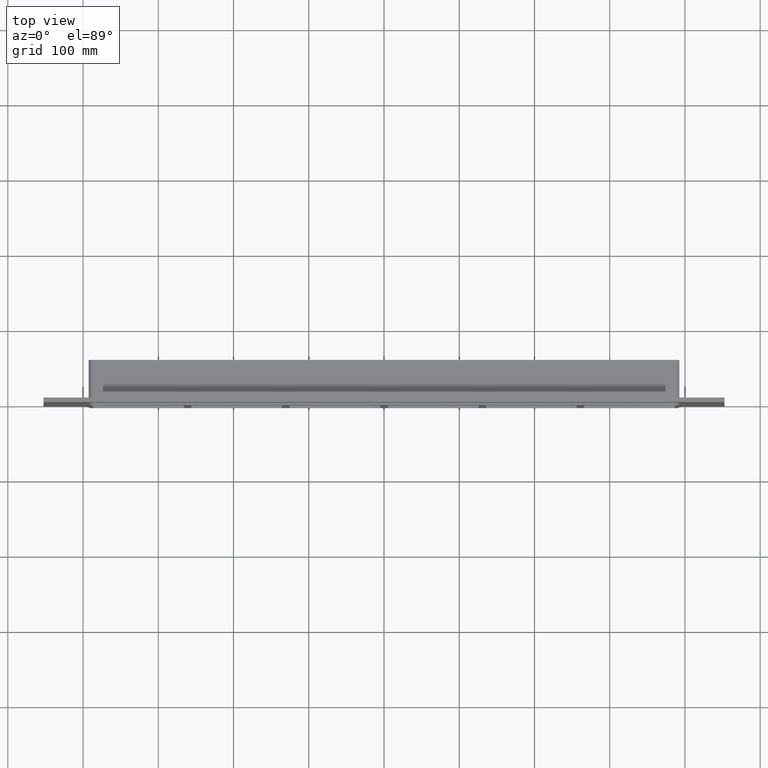
[diagram: clean part render]
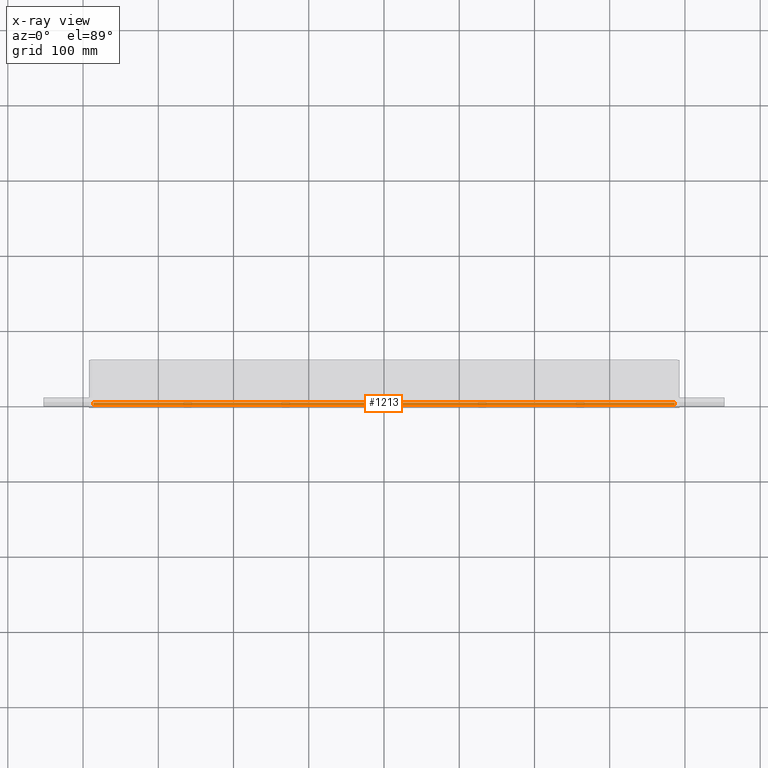
[diagram: x-ray — body ghosted, one internal face saturated and labeled with its STEP entity id]
A machine part, top view, then the same camera in x-ray: the body is ghosted and one INTERNAL B-rep face — a face not visible from any outside direction — is saturated and labeled: STEP entity #1213.
In plain terms, the highlighted planar face has unit normal (0, 0, 1).
Its self-contained STEP definition (entity closure, byte-faithful):
#936=CARTESIAN_POINT('',(-386.50000000000023,0.0,115.0));
#937=VERTEX_POINT('',#936);
#945=CARTESIAN_POINT('',(386.50000000000006,0.0,115.0));
#946=VERTEX_POINT('',#945);
#947=CARTESIAN_POINT('',(386.50000000000006,0.0,115.0));
#948=DIRECTION('',(-1.0,0.0,0.0));
#949=VECTOR('',#948,773.00000000000023);
#950=LINE('',#947,#949);
#951=EDGE_CURVE('',#946,#937,#950,.T.);
#1084=CARTESIAN_POINT('',(386.50000000000011,-3.0,115.0));
#1085=VERTEX_POINT('',#1084);
#1086=CARTESIAN_POINT('',(386.50000000000006,0.0,115.0));
#1087=DIRECTION('',(0.0,-1.0,0.0));
#1088=VECTOR('',#1087,3.0);
#1089=LINE('',#1086,#1088);
#1090=EDGE_CURVE('',#946,#1085,#1089,.T.);
#1190=CARTESIAN_POINT('',(-392.50000000000011,0.0,115.0));
#1191=DIRECTION('',(0.0,0.0,1.0));
#1192=DIRECTION('',(1.0,0.0,0.0));
#1193=AXIS2_PLACEMENT_3D('',#1190,#1191,#1192);
#1194=PLANE('',#1193);
#1195=ORIENTED_EDGE('',*,*,#951,.T.);
#1196=CARTESIAN_POINT('',(-386.50000000000023,-3.0,115.0));
#1197=VERTEX_POINT('',#1196);
#1198=CARTESIAN_POINT('',(-386.50000000000023,-3.0,115.0));
#1199=DIRECTION('',(0.0,1.0,0.0));
#1200=VECTOR('',#1199,3.0);
#1201=LINE('',#1198,#1200);
#1202=EDGE_CURVE('',#1197,#937,#1201,.T.);
#1203=ORIENTED_EDGE('',*,*,#1202,.F.);
#1204=CARTESIAN_POINT('',(386.50000000000011,-3.0,115.0));
#1205=DIRECTION('',(-1.0,0.0,0.0));
#1206=VECTOR('',#1205,773.00000000000034);
#1207=LINE('',#1204,#1206);
#1208=EDGE_CURVE('',#1085,#1197,#1207,.T.);
#1209=ORIENTED_EDGE('',*,*,#1208,.F.);
#1210=ORIENTED_EDGE('',*,*,#1090,.F.);
#1211=EDGE_LOOP('',(#1195,#1203,#1209,#1210));
#1212=FACE_OUTER_BOUND('',#1211,.T.);
#1213=ADVANCED_FACE('',(#1212),#1194,.T.);